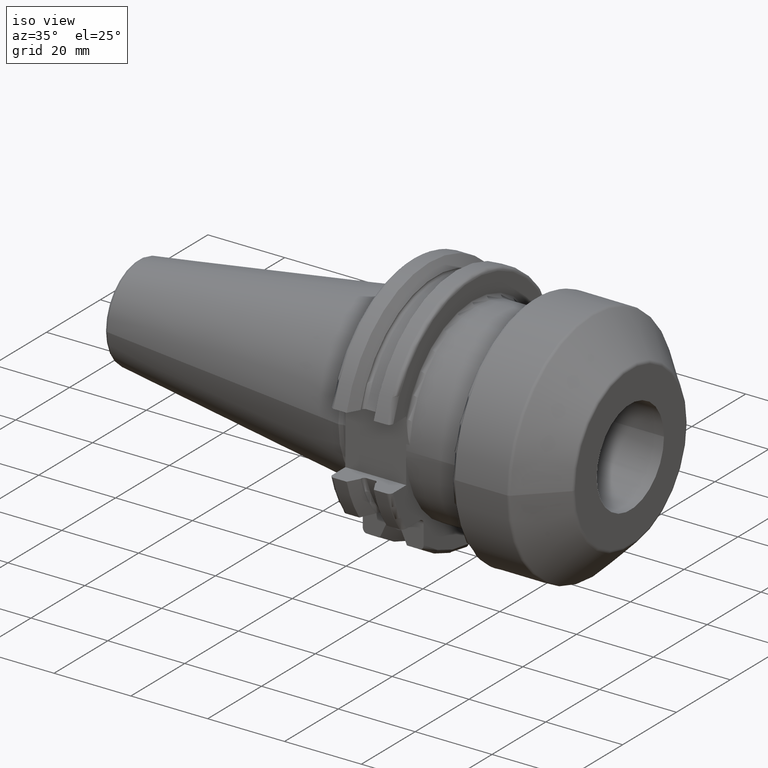
[diagram: clean part render]
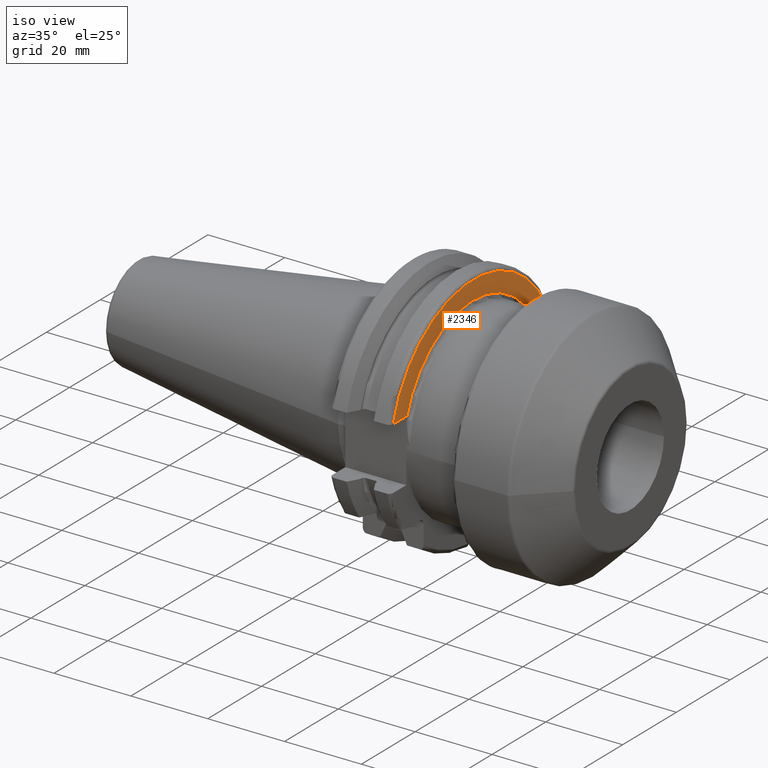
[diagram: same view with one face highlighted and labeled with its STEP entity id]
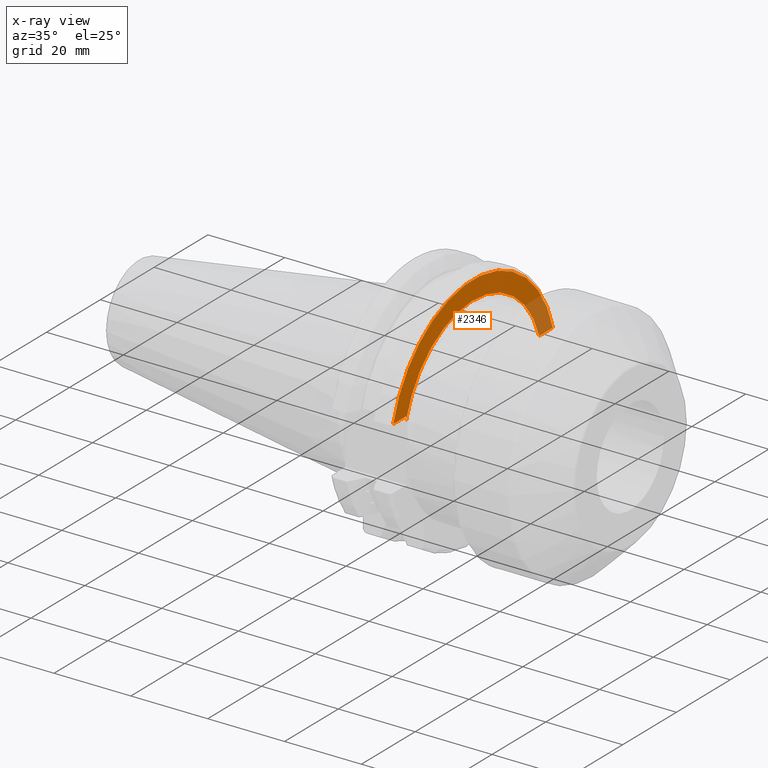
[diagram: x-ray of the same camera — body ghosted, the highlighted face saturated]
A machine part, iso view. The second image highlights one B-rep face of the part: STEP entity #2346.
The next image is the same camera in x-ray: the body ghosted, the highlighted face saturated — about 15% of this face is hidden behind the body in this view.
In plain terms, the highlighted planar face has unit normal (1, 0, 0).
Its self-contained STEP definition (entity closure, byte-faithful):
#443=DIRECTION('',(0.E0,-1.E0,0.E0));
#444=VECTOR('',#443,5.076137762584E0);
#445=CARTESIAN_POINT('',(1.905E1,2.967695075728E1,8.1E0));
#446=LINE('',#445,#444);
#447=DIRECTION('',(0.E0,0.E0,1.E0));
#448=VECTOR('',#447,8.001712348852E-1);
#449=CARTESIAN_POINT('',(1.905E1,-2.485E1,7.299828765115E0));
#450=LINE('',#449,#448);
#451=DIRECTION('',(0.E0,1.E0,0.E0));
#452=VECTOR('',#451,4.826950757280E0);
#453=CARTESIAN_POINT('',(1.905E1,-2.967695075728E1,8.1E0));
#454=LINE('',#453,#452);
#915=CARTESIAN_POINT('',(1.905E1,2.967695075728E1,8.1E0));
#926=CARTESIAN_POINT('',(1.905E1,0.E0,0.E0));
#927=DIRECTION('',(1.E0,0.E0,0.E0));
#928=DIRECTION('',(0.E0,9.647119303464E-1,2.633075985372E-1));
#929=AXIS2_PLACEMENT_3D('',#926,#927,#928);
#993=CARTESIAN_POINT('',(1.905E1,-2.485E1,7.299828765115E0));
#995=CARTESIAN_POINT('',(1.905E1,0.E0,0.E0));
#996=DIRECTION('',(-1.E0,0.E0,0.E0));
#997=DIRECTION('',(0.E0,-9.594594594595E-1,2.818466704678E-1));
#998=AXIS2_PLACEMENT_3D('',#995,#996,#997);
#1663=CARTESIAN_POINT('',(1.905E1,-2.967695075728E1,8.1E0));
#1664=CARTESIAN_POINT('',(1.905E1,-2.485E1,8.1E0));
#1665=VERTEX_POINT('',#1663);
#1666=VERTEX_POINT('',#1664);
#1704=VERTEX_POINT('',#915);
#1782=CARTESIAN_POINT('',(1.905E1,2.460081299470E1,8.1E0));
#1783=VERTEX_POINT('',#1782);
#1785=VERTEX_POINT('',#993);
#2330=CARTESIAN_POINT('',(1.905E1,0.E0,0.E0));
#2331=DIRECTION('',(1.E0,0.E0,0.E0));
#2332=DIRECTION('',(0.E0,-1.E0,0.E0));
#2333=AXIS2_PLACEMENT_3D('',#2330,#2331,#2332);
#2334=PLANE('',#2333);
#2335=ORIENTED_EDGE('',*,*,#2015,.T.);
#2337=ORIENTED_EDGE('',*,*,#2336,.F.);
#2339=ORIENTED_EDGE('',*,*,#2338,.T.);
#2341=ORIENTED_EDGE('',*,*,#2340,.F.);
#2343=ORIENTED_EDGE('',*,*,#2342,.F.);
#2344=EDGE_LOOP('',(#2335,#2337,#2339,#2341,#2343));
#2345=FACE_OUTER_BOUND('',#2344,.F.);
#2346=ADVANCED_FACE('',(#2345),#2334,.T.);
#930=CIRCLE('',#929,3.07625E1);
#999=CIRCLE('',#998,2.59E1);
#2015=EDGE_CURVE('',#1704,#1783,#446,.T.);
#2336=EDGE_CURVE('',#1785,#1783,#999,.T.);
#2338=EDGE_CURVE('',#1785,#1666,#450,.T.);
#2340=EDGE_CURVE('',#1665,#1666,#454,.T.);
#2342=EDGE_CURVE('',#1704,#1665,#930,.T.);